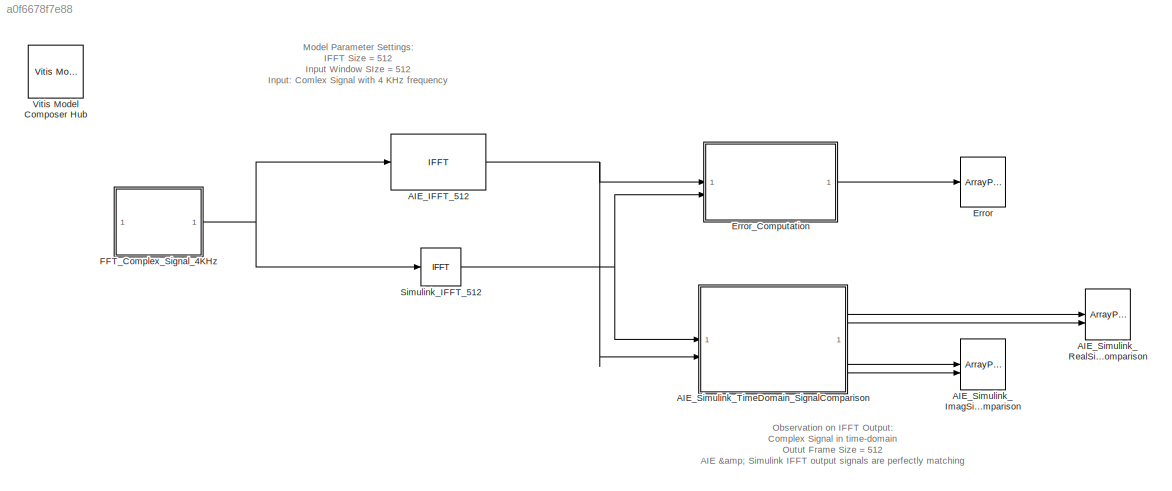
MODEL slx_a0f6678f7e88
KIND model
CONFIG AbsTol = auto
CONFIG EnableMultiTasking = off
CONFIG FixedStep = auto
CONFIG MaxStep = auto
CONFIG MinStep = auto
CONFIG RelTol = 1e-3
CONFIG SampleTimeConstraint = Unconstrained
CONFIG SolverName = VariableStepAuto
CONFIG StartTime = 0.0
CONFIG StopTime = 2
BLOCK [Reference] AIE_IFFT_512  REF=aieDSP/IFFT
  SourceBlock = aieDSP/IFFT
  SourceType = IFFT
BLOCK [ArrayPlot] AIE_Simulink_ImagSignal_Comparison 
  GraphicalSettings = {"Style":{"BackgroundColor":[0.15686274509803921,0.15686274509803921,0.15686274509803921],"AxesColor":[0,0,0],"LabelsColor":[0.68627450980392157,0.68627450980392157,0.68627450980392157],"LineStyle":["-","-"],"LineColor":[[1,1,0.066666666666666666],[0.074509803921568626,0.62352941176470589,1]],"LineWidth":[1.5,1.5],"Marker":["none","none"],"FontSize":"small"},"Cursors":{"Enabled":false,"XLocation":...<+392ch>
  NumInputPorts = 2
  PlotType = Line
  ShowLegend = on
  WasSavedAsWebScope = on
  WindowPosition = [5.000000,269.000000,845.000000,423.000000,]
  YLimits = [-0.0001,0]
BLOCK [ArrayPlot] AIE_Simulink_RealSignal_Comparison
  GraphicalSettings = {"Style":{"BackgroundColor":[0.15686274509803921,0.15686274509803921,0.15686274509803921],"AxesColor":[0,0,0],"LabelsColor":[0.68627450980392157,0.68627450980392157,0.68627450980392157],"LineStyle":["-","-"],"LineColor":[[1,1,0.066666666666666666],[0.074509803921568626,0.62352941176470589,1]],"LineWidth":[1.5,1.5],"Marker":["none","none"],"FontSize":"small"},"Cursors":{"Enabled":false,"XLocation":...<+392ch>
  NumInputPorts = 2
  PlotType = Line
  ShowLegend = on
  WasSavedAsWebScope = on
  WindowPosition = [2.000000,37.000000,1280.000000,655.000000,]
  YLimits = [-1280,1280]
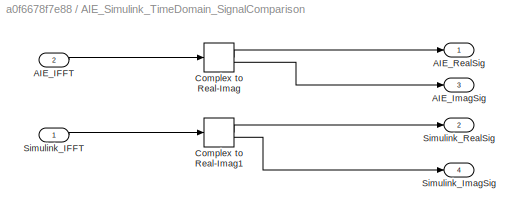
BLOCK [SubSystem] AIE_Simulink_TimeDomain_SignalComparison
BLOCK [Inport] AIE_Simulink_TimeDomain_SignalComparison/AIE_IFFT
  Port = 2
BLOCK [Outport] AIE_Simulink_TimeDomain_SignalComparison/AIE_ImagSig
  Port = 3
BLOCK [Outport] AIE_Simulink_TimeDomain_SignalComparison/AIE_RealSig
BLOCK [ComplexToRealImag] AIE_Simulink_TimeDomain_SignalComparison/Complex to Real-Imag
BLOCK [ComplexToRealImag] AIE_Simulink_TimeDomain_SignalComparison/Complex to Real-Imag1
BLOCK [Inport] AIE_Simulink_TimeDomain_SignalComparison/Simulink_IFFT
BLOCK [Outport] AIE_Simulink_TimeDomain_SignalComparison/Simulink_ImagSig
  Port = 4
BLOCK [Outport] AIE_Simulink_TimeDomain_SignalComparison/Simulink_RealSig
  Port = 2
BLOCK [ArrayPlot] Error
  GraphicalSettings = {"Style":{"BackgroundColor":[0.15686274509803921,0.15686274509803921,0.15686274509803921],"AxesColor":[0,0,0],"LabelsColor":[0.68627450980392157,0.68627450980392157,0.68627450980392157],"LineStyle":["-"],"LineColor":[1,1,0.066666666666666666],"LineWidth":1.5,"Marker":["none"],"FontSize":"small"},"Cursors":{"Enabled":false,"XLocation":[2,8],"SnapToData":false,"LockSpacing":false,"ShowText":false},"...<+327ch>
  PlotType = Line
  ShowLegend = on
  WasSavedAsWebScope = on
  WindowPosition = [338.000000,41.000000,800.000000,500.000000,]
  XDataMode = Custom
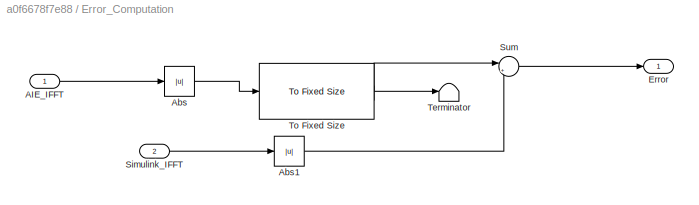
BLOCK [SubSystem] Error_Computation
BLOCK [Inport] Error_Computation/AIE_IFFT
BLOCK [Abs] Error_Computation/Abs
  SaturateOnIntegerOverflow = off
BLOCK [Abs] Error_Computation/Abs1
  SaturateOnIntegerOverflow = off
BLOCK [Outport] Error_Computation/Error
BLOCK [Inport] Error_Computation/Simulink_IFFT
  Port = 2
BLOCK [Sum] Error_Computation/Sum
  Inputs = |+-
BLOCK [Terminator] Error_Computation/Terminator
BLOCK [Reference] Error_Computation/To Fixed Size  REF=aieUtilities/To Fixed Size
  SourceBlock = aieUtilities/To Fixed Size
  SourceType = To Fixed Size
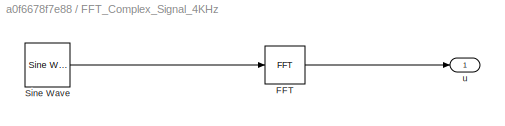
BLOCK [SubSystem] FFT_Complex_Signal_4KHz
BLOCK [Reference] FFT_Complex_Signal_4KHz/FFT  REF=dspxfrm3/FFT
  SourceBlock = dspxfrm3/FFT
  SourceType = FFT
BLOCK [Reference] FFT_Complex_Signal_4KHz/Sine Wave  REF=dspsrcs4/Sine Wave
  SourceBlock = dspsrcs4/Sine Wave
  SourceType = Sine Wave
BLOCK [Outport] FFT_Complex_Signal_4KHz/u
BLOCK [Reference] Simulink_IFFT_512  REF=dspxfrm3/IFFT
  SourceBlock = dspxfrm3/IFFT
  SourceType = IFFT
BLOCK [Reference] Vitis Model Composer Hub  REF=vmcUtilities/Vitis Model Composer Hub
  SourceBlock = vmcUtilities/Vitis Model Composer Hub
  SourceType = VMC Hub
  Tag = genX
  UserDataPersistent = on
ANNOTATION (root): Model Parameter Settings: IFFT Size = 512 Input Window SIze = 512 Input: Comlex Signal with 4 KHz frequency
ANNOTATION (root): Observation on IFFT Output: Complex Signal in time-domain Outut Frame Size = 512 AIE & Simulink IFFT output signals are perfectly matching
NET AIE_IFFT_512:1 -> AIE_Simulink_TimeDomain_SignalComparison:2, Error_Computation:1
LINE AIE_Simulink_TimeDomain_SignalComparison/AIE_IFFT:1 -> AIE_Simulink_TimeDomain_SignalComparison/Complex to Real-Imag:1
LINE AIE_Simulink_TimeDomain_SignalComparison/Complex to Real-Imag1:1 -> AIE_Simulink_TimeDomain_SignalComparison/Simulink_RealSig:1
LINE AIE_Simulink_TimeDomain_SignalComparison/Complex to Real-Imag1:2 -> AIE_Simulink_TimeDomain_SignalComparison/Simulink_ImagSig:1
LINE AIE_Simulink_TimeDomain_SignalComparison/Complex to Real-Imag:1 -> AIE_Simulink_TimeDomain_SignalComparison/AIE_RealSig:1
LINE AIE_Simulink_TimeDomain_SignalComparison/Complex to Real-Imag:2 -> AIE_Simulink_TimeDomain_SignalComparison/AIE_ImagSig:1
LINE AIE_Simulink_TimeDomain_SignalComparison/Simulink_IFFT:1 -> AIE_Simulink_TimeDomain_SignalComparison/Complex to Real-Imag1:1
LINE AIE_Simulink_TimeDomain_SignalComparison:1 -> AIE_Simulink_RealSignal_Comparison:1
LINE AIE_Simulink_TimeDomain_SignalComparison:2 -> AIE_Simulink_RealSignal_Comparison:2
LINE AIE_Simulink_TimeDomain_SignalComparison:3 -> AIE_Simulink_ImagSignal_Comparison :1
LINE AIE_Simulink_TimeDomain_SignalComparison:4 -> AIE_Simulink_ImagSignal_Comparison :2
LINE Error_Computation/AIE_IFFT:1 -> Error_Computation/Abs:1
LINE Error_Computation/Abs1:1 -> Error_Computation/Sum:2
LINE Error_Computation/Abs:1 -> Error_Computation/To Fixed Size:1
LINE Error_Computation/Simulink_IFFT:1 -> Error_Computation/Abs1:1
LINE Error_Computation/Sum:1 -> Error_Computation/Error:1
LINE Error_Computation/To Fixed Size:1 -> Error_Computation/Sum:1
LINE Error_Computation/To Fixed Size:2 -> Error_Computation/Terminator:1
LINE Error_Computation:1 -> Error:1
LINE FFT_Complex_Signal_4KHz/FFT:1 -> FFT_Complex_Signal_4KHz/u:1
LINE FFT_Complex_Signal_4KHz/Sine Wave:1 -> FFT_Complex_Signal_4KHz/FFT:1
NET FFT_Complex_Signal_4KHz:1 -> AIE_IFFT_512:1, Simulink_IFFT_512:1
NET Simulink_IFFT_512:1 -> AIE_Simulink_TimeDomain_SignalComparison:1, Error_Computation:2
note: NET lines group one-source signal fan-out (src -> all destinations, sorted); 1:1 wires keep LINE
